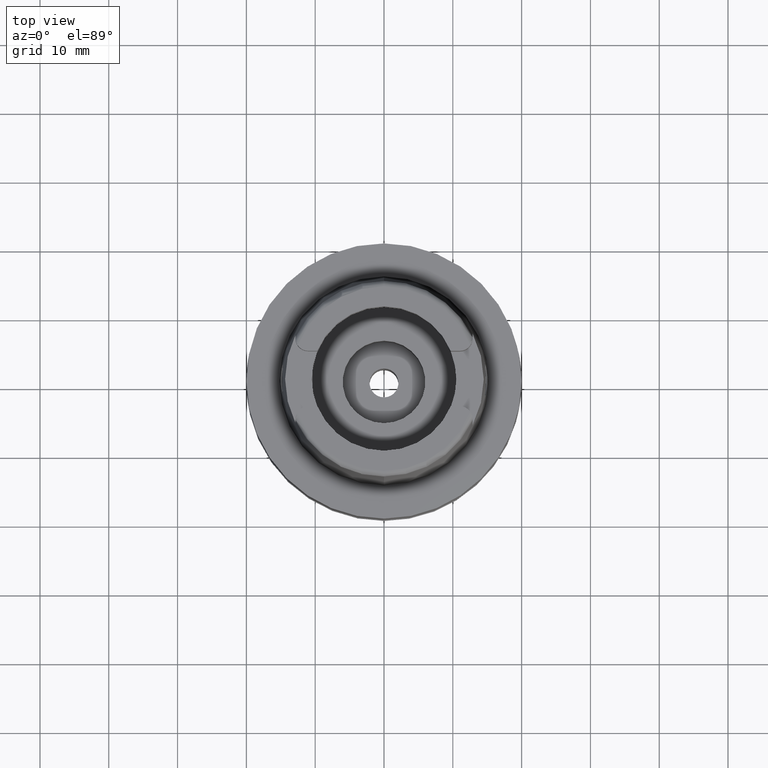
[diagram: clean part render]
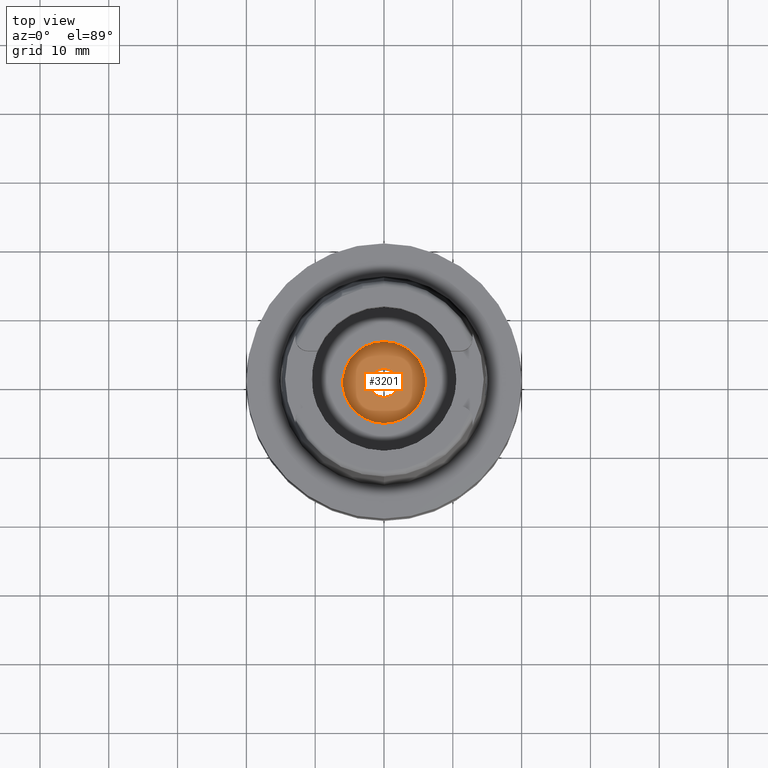
[diagram: same view with one face highlighted and labeled with its STEP entity id]
A machine part, top view. The second image highlights one B-rep face of the part: STEP entity #3201.
In plain terms, the highlighted planar face has unit normal (0, 0, 1).
Its self-contained STEP definition (entity closure, byte-faithful):
#863=CARTESIAN_POINT('',(0.E0,0.E0,-1.595E1));
#864=DIRECTION('',(0.E0,0.E0,-1.E0));
#865=DIRECTION('',(0.E0,-1.E0,0.E0));
#866=AXIS2_PLACEMENT_3D('',#863,#864,#865);
#871=CARTESIAN_POINT('',(0.E0,0.E0,-1.595E1));
#872=DIRECTION('',(0.E0,0.E0,-1.E0));
#873=DIRECTION('',(0.E0,1.E0,0.E0));
#874=AXIS2_PLACEMENT_3D('',#871,#872,#873);
#879=CARTESIAN_POINT('',(0.E0,0.E0,-1.595E1));
#880=DIRECTION('',(0.E0,0.E0,1.E0));
#881=DIRECTION('',(0.E0,-1.E0,0.E0));
#882=AXIS2_PLACEMENT_3D('',#879,#880,#881);
#887=CARTESIAN_POINT('',(0.E0,0.E0,-1.595E1));
#888=DIRECTION('',(0.E0,0.E0,1.E0));
#889=DIRECTION('',(0.E0,1.E0,0.E0));
#890=AXIS2_PLACEMENT_3D('',#887,#888,#889);
#2406=CARTESIAN_POINT('',(0.E0,6.E0,-1.595E1));
#2407=VERTEX_POINT('',#2406);
#2408=CARTESIAN_POINT('',(0.E0,-6.E0,-1.595E1));
#2409=VERTEX_POINT('',#2408);
#2410=CARTESIAN_POINT('',(0.E0,-2.1E0,-1.595E1));
#2411=CARTESIAN_POINT('',(0.E0,2.1E0,-1.595E1));
#2412=VERTEX_POINT('',#2410);
#2413=VERTEX_POINT('',#2411);
#3186=CARTESIAN_POINT('',(0.E0,0.E0,-1.595E1));
#3187=DIRECTION('',(0.E0,0.E0,1.E0));
#3188=DIRECTION('',(0.E0,1.E0,0.E0));
#3189=AXIS2_PLACEMENT_3D('',#3186,#3187,#3188);
#3190=PLANE('',#3189);
#3191=ORIENTED_EDGE('',*,*,#3179,.T.);
#3192=ORIENTED_EDGE('',*,*,#3168,.T.);
#3193=EDGE_LOOP('',(#3191,#3192));
#3194=FACE_OUTER_BOUND('',#3193,.F.);
#3196=ORIENTED_EDGE('',*,*,#3195,.T.);
#3198=ORIENTED_EDGE('',*,*,#3197,.T.);
#3199=EDGE_LOOP('',(#3196,#3198));
#3200=FACE_BOUND('',#3199,.F.);
#867=CIRCLE('',#866,6.E0);
#875=CIRCLE('',#874,6.E0);
#883=CIRCLE('',#882,2.1E0);
#891=CIRCLE('',#890,2.1E0);
#3168=EDGE_CURVE('',#2407,#2409,#875,.T.);
#3179=EDGE_CURVE('',#2409,#2407,#867,.T.);
#3195=EDGE_CURVE('',#2412,#2413,#883,.T.);
#3197=EDGE_CURVE('',#2413,#2412,#891,.T.);
#3201=ADVANCED_FACE('',(#3194,#3200),#3190,.T.);